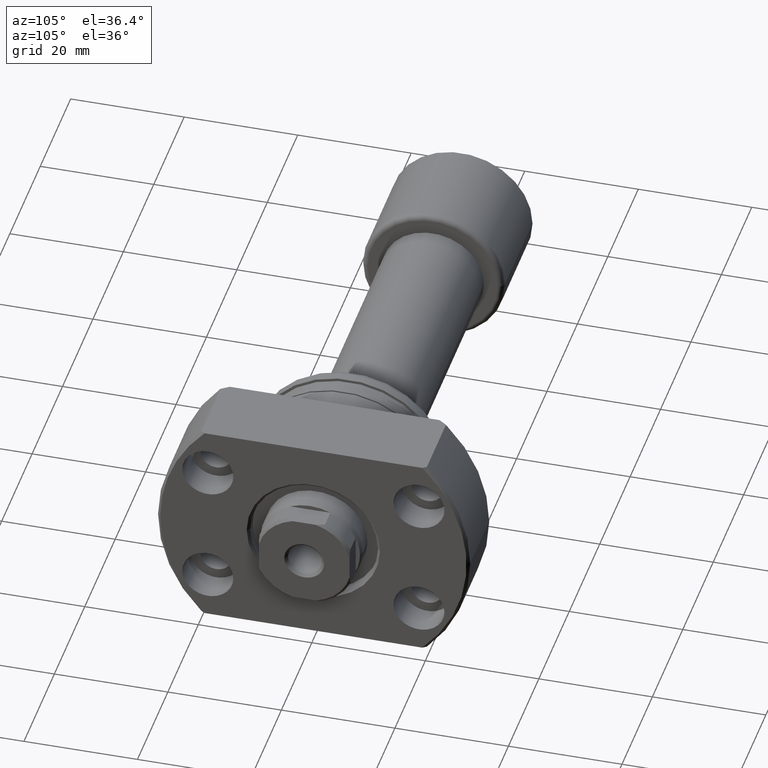
[diagram: clean part render]
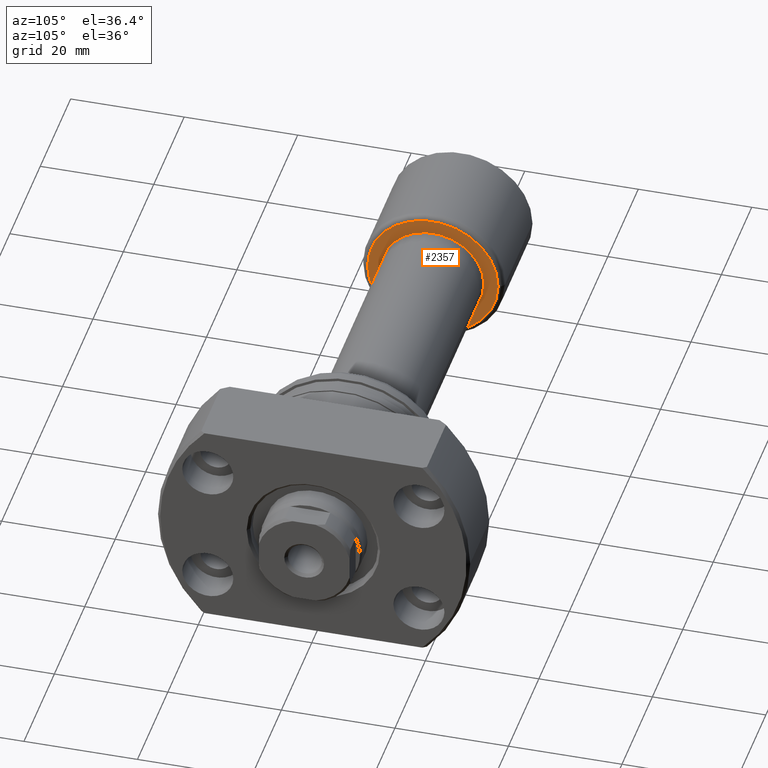
[diagram: same view with one face highlighted and labeled with its STEP entity id]
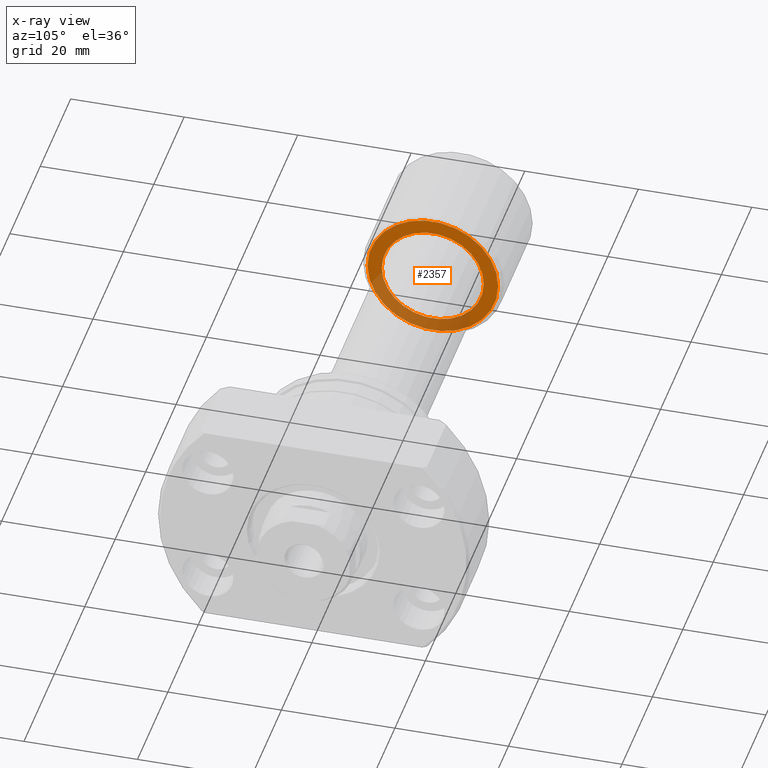
[diagram: x-ray of the same camera — body ghosted, the highlighted face saturated]
A machine part, auxiliary view. The second image highlights one B-rep face of the part: STEP entity #2357.
The next image is the same camera in x-ray: the body ghosted, the highlighted face saturated — about 32% of this face is hidden behind the body in this view.
In plain terms, the highlighted planar face has unit normal (-1, -0, 0).
Its self-contained STEP definition (entity closure, byte-faithful):
#8 = DIRECTION ( 'NONE',  ( 0.000000000000000000, -1.000000000000000000, 0.000000000000000000 ) ) ;
#150 = EDGE_CURVE ( 'NONE', #2062, #431, #2671, .T. ) ;
#311 = CARTESIAN_POINT ( 'NONE',  ( 20.39999999999999503, 2.181866337020893623E-16, 0.000000000000000000 ) ) ;
#431 = VERTEX_POINT ( 'NONE', #1222 ) ;
#511 = VERTEX_POINT ( 'NONE', #1301 ) ;
#560 = AXIS2_PLACEMENT_3D ( 'NONE', #1863, #1051, #2360 ) ;
#612 = CIRCLE ( 'NONE', #2011, 9.000000000000000000 ) ;
#780 = FACE_BOUND ( 'NONE', #2298, .T. ) ;
#991 = DIRECTION ( 'NONE',  ( -1.000000000000000000, -1.069542322069065801E-17, -0.000000000000000000 ) ) ;
#1007 = DIRECTION ( 'NONE',  ( 1.069542322069065801E-17, -1.000000000000000000, 0.000000000000000000 ) ) ;
#1051 = DIRECTION ( 'NONE',  ( -1.000000000000000000, -1.069542322069065801E-17, -0.000000000000000000 ) ) ;
#1171 = EDGE_LOOP ( 'NONE', ( #1608, #1635 ) ) ;
#1222 = CARTESIAN_POINT ( 'NONE',  ( 20.39999999999999503, -11.50000000000000000, 0.000000000000000000 ) ) ;
#1231 = DIRECTION ( 'NONE',  ( 0.000000000000000000, -1.000000000000000000, 0.000000000000000000 ) ) ;
#1301 = CARTESIAN_POINT ( 'NONE',  ( 20.39999999999999503, 9.000000000000000000, 1.102182119232623630E-15 ) ) ;
#1432 = EDGE_CURVE ( 'NONE', #431, #2062, #1642, .T. ) ;
#1588 = ORIENTED_EDGE ( 'NONE', *, *, #2036, .T. ) ;
#1608 = ORIENTED_EDGE ( 'NONE', *, *, #1432, .F. ) ;
#1635 = ORIENTED_EDGE ( 'NONE', *, *, #150, .F. ) ;
#1642 = CIRCLE ( 'NONE', #2783, 11.50000000000000000 ) ;
#1747 = CARTESIAN_POINT ( 'NONE',  ( 20.39999999999999503, 2.181866337020893623E-16, 0.000000000000000000 ) ) ;
#1752 = AXIS2_PLACEMENT_3D ( 'NONE', #2487, #1993, #1007 ) ;
#1799 = DIRECTION ( 'NONE',  ( 0.000000000000000000, -1.000000000000000000, 0.000000000000000000 ) ) ;
#1863 = CARTESIAN_POINT ( 'NONE',  ( 20.39999999999999503, 2.181866337020893623E-16, 0.000000000000000000 ) ) ;
#1993 = DIRECTION ( 'NONE',  ( -1.000000000000000000, -1.069542322069065801E-17, 0.000000000000000000 ) ) ;
#2011 = AXIS2_PLACEMENT_3D ( 'NONE', #311, #2096, #1799 ) ;
#2036 = EDGE_CURVE ( 'NONE', #2162, #511, #612, .T. ) ;
#2062 = VERTEX_POINT ( 'NONE', #2845 ) ;
#2072 = EDGE_CURVE ( 'NONE', #511, #2162, #2686, .T. ) ;
#2096 = DIRECTION ( 'NONE',  ( -1.000000000000000000, -1.069542322069065801E-17, -0.000000000000000000 ) ) ;
#2128 = ORIENTED_EDGE ( 'NONE', *, *, #2072, .T. ) ;
#2162 = VERTEX_POINT ( 'NONE', #2929 ) ;
#2204 = CARTESIAN_POINT ( 'NONE',  ( 20.39999999999999503, 2.181866337020893623E-16, 0.000000000000000000 ) ) ;
#2222 = DIRECTION ( 'NONE',  ( -1.000000000000000000, -1.069542322069065801E-17, -0.000000000000000000 ) ) ;
#2298 = EDGE_LOOP ( 'NONE', ( #1588, #2128 ) ) ;
#2357 = ADVANCED_FACE ( 'NONE', ( #2992, #780 ), #2554, .F. ) ;
#2360 = DIRECTION ( 'NONE',  ( 0.000000000000000000, -1.000000000000000000, 0.000000000000000000 ) ) ;
#2487 = CARTESIAN_POINT ( 'NONE',  ( 20.39999999999999503, -9.000000000000000000, 0.000000000000000000 ) ) ;
#2554 = PLANE ( 'NONE',  #1752 ) ;
#2671 = CIRCLE ( 'NONE', #2829, 11.50000000000000000 ) ;
#2686 = CIRCLE ( 'NONE', #560, 9.000000000000000000 ) ;
#2783 = AXIS2_PLACEMENT_3D ( 'NONE', #2204, #2222, #8 ) ;
#2829 = AXIS2_PLACEMENT_3D ( 'NONE', #1747, #991, #1231 ) ;
#2845 = CARTESIAN_POINT ( 'NONE',  ( 20.39999999999999503, 11.50000000000000000, 1.469576158976823947E-15 ) ) ;
#2929 = CARTESIAN_POINT ( 'NONE',  ( 20.39999999999999503, -9.000000000000000000, 0.000000000000000000 ) ) ;
#2992 = FACE_OUTER_BOUND ( 'NONE', #1171, .T. ) ;